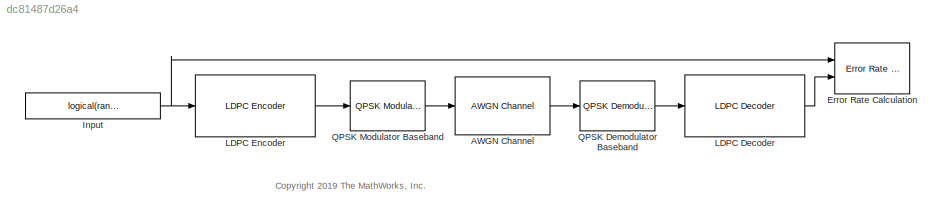
MODEL slx_dc81487d26a4
KIND model
CONFIG AbsTol = auto
CONFIG EnableMultiTasking = off
CONFIG FixedStep = auto
CONFIG InitFcn = snr = 1.0;
CONFIG MaxStep = auto
CONFIG MinStep = auto
CONFIG RelTol = 1e-3
CONFIG SampleTimeConstraint = Unconstrained
CONFIG Solver = VariableStepAuto
CONFIG SolverName = VariableStepAuto
CONFIG StartTime = 0.0
CONFIG StopTime = 0
BLOCK [Reference] AWGN Channel  REF=commchan3/AWGN
Channel
  Ports = [1, 1]
  SourceBlock = commchan3/AWGN\nChannel
  SourceProductBaseCode = CM
  SourceType = AWGN Channel
  UserDataPersistent = on
BLOCK [Reference] Error Rate Calculation  REF=commsink2/Error Rate
Calculation
  Ports = [2]
  SourceBlock = commsink2/Error Rate\nCalculation
  SourceProductBaseCode = CM
  SourceType = Error Rate Calculation
BLOCK [Constant] Input
  OutDataTypeStr = boolean
  SampleTime = 1
  Value = logical(randi([0 1],32400,1));
  VectorParams1D = off
BLOCK [Reference] LDPC Decoder  REF=commblkcod2/LDPC Decoder
  Ports = [1, 1]
  SourceBlock = commblkcod2/LDPC Decoder
  SourceProductBaseCode = CM
  SourceType = LDPC Decoder
BLOCK [Reference] LDPC Encoder  REF=commblkcod2/LDPC Encoder
  Ports = [1, 1]
  SourceBlock = commblkcod2/LDPC Encoder
  SourceProductBaseCode = CM
  SourceType = LDPC Encoder
BLOCK [Reference] QPSK Demodulator Baseband  REF=commdigbbndpm3/QPSK
Demodulator
Baseband
  Ports = [1, 1]
  SourceBlock = commdigbbndpm3/QPSK\nDemodulator\nBaseband
  SourceProductBaseCode = CM
  SourceType = QPSK Demodulator Baseband
BLOCK [Reference] QPSK Modulator Baseband  REF=commdigbbndpm3/QPSK
Modulator
Baseband
  Ports = [1, 1]
  SourceBlock = commdigbbndpm3/QPSK\nModulator\nBaseband
  SourceProductBaseCode = CM
  SourceType = QPSK Modulator Baseband
ANNOTATION (root): <copyright redacted>
LINE AWGN Channel:1 -> QPSK Demodulator Baseband:1
NET Input:1 -> Error Rate Calculation:1, LDPC Encoder:1
LINE LDPC Decoder:1 -> Error Rate Calculation:2
LINE LDPC Encoder:1 -> QPSK Modulator Baseband:1
LINE QPSK Demodulator Baseband:1 -> LDPC Decoder:1
LINE QPSK Modulator Baseband:1 -> AWGN Channel:1
note: NET lines group one-source signal fan-out (src -> all destinations, sorted); 1:1 wires keep LINE
